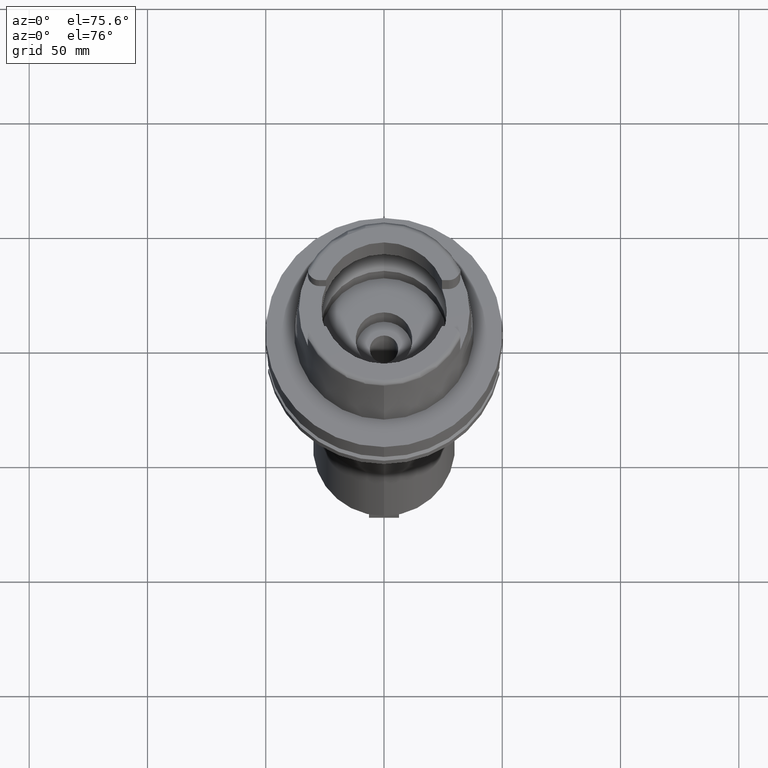
[diagram: clean part render]
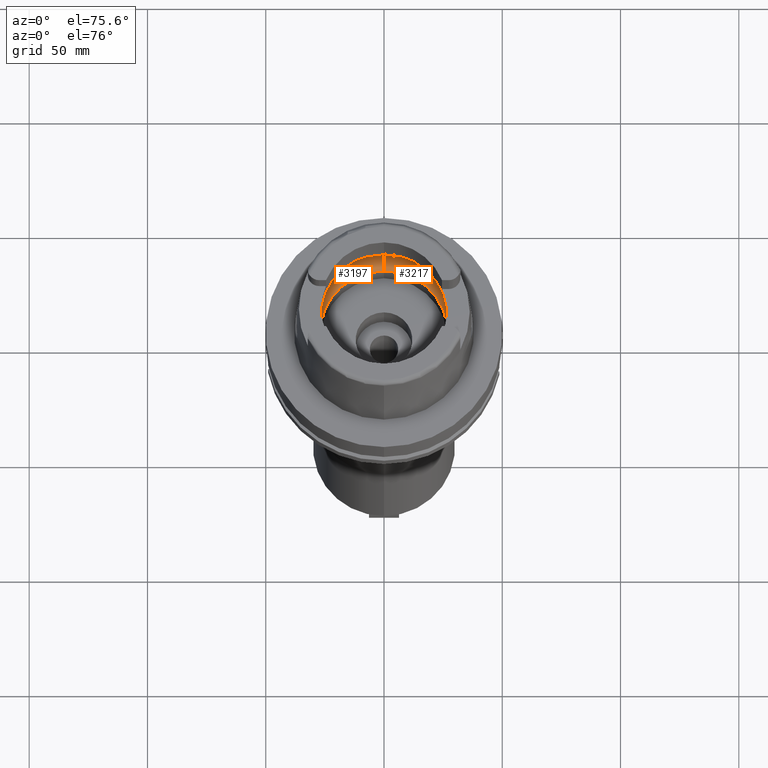
[diagram: same view with one multi-face feature highlighted, each face labeled with its STEP entity id]
A machine part, auxiliary view. The highlighted faces form ONE feature: a constant-radius fillet chain: 2 tangent blend faces with common blend radius 12 mm. The faces share edges in the B-rep.
Their STEP definitions:
[1] entity #3197 (Torus):
#577=CARTESIAN_POINT('',(-3.140918884336E1,-2.390158196044E0,9.496624327026E0));
#620=CARTESIAN_POINT('',(-3.140918884336E1,-2.390158196044E0,9.496624327026E0));
#621=CARTESIAN_POINT('',(-3.142817875159E1,-2.140610858661E0,9.388244007530E0));
#622=CARTESIAN_POINT('',(-3.145843758248E1,-1.626014991287E0,9.205154770459E0));
#623=CARTESIAN_POINT('',(-3.148416948118E1,-8.214796750536E-1,
9.037587869685E0));
#624=CARTESIAN_POINT('',(-3.148971910754E1,-2.740178461562E-1,9.E0));
#625=CARTESIAN_POINT('',(-3.148971910754E1,0.E0,9.E0));
#630=CARTESIAN_POINT('',(-3.148971910754E1,0.E0,9.E0));
#631=CARTESIAN_POINT('',(-3.148971910754E1,2.740194019664E-1,9.E0));
#632=CARTESIAN_POINT('',(-3.148416939818E1,8.214832298144E-1,9.037588419707E0));
#633=CARTESIAN_POINT('',(-3.145843756616E1,1.626014836423E0,9.205154859198E0));
#634=CARTESIAN_POINT('',(-3.142817875670E1,2.140610791588E0,9.388243978399E0));
#635=CARTESIAN_POINT('',(-3.140918884336E1,2.390158196044E0,9.496624327026E0));
#640=CARTESIAN_POINT('',(0.E0,0.E0,9.496624327026E0));
#641=DIRECTION('',(0.E0,0.E0,-1.E0));
#642=DIRECTION('',(-9.971171061384E-1,7.587803796965E-2,0.E0));
#643=AXIS2_PLACEMENT_3D('',#640,#641,#642);
#648=CARTESIAN_POINT('',(0.E0,0.E0,4.993178413033E-2));
#649=DIRECTION('',(0.E0,0.E0,1.E0));
#650=DIRECTION('',(0.E0,1.E0,0.E0));
#651=AXIS2_PLACEMENT_3D('',#648,#649,#650);
#656=CARTESIAN_POINT('',(0.E0,-1.95E1,9.496624327026E0));
#657=DIRECTION('',(-1.E0,0.E0,0.E0));
#658=DIRECTION('',(0.E0,-6.166666666667E-1,-7.872243785746E-1));
#659=AXIS2_PLACEMENT_3D('',#656,#657,#658);
#664=CARTESIAN_POINT('',(0.E0,0.E0,9.496624327026E0));
#665=DIRECTION('',(0.E0,0.E0,-1.E0));
#666=DIRECTION('',(0.E0,-1.E0,0.E0));
#667=AXIS2_PLACEMENT_3D('',#664,#665,#666);
#698=CARTESIAN_POINT('',(0.E0,1.95E1,9.496624327026E0));
#699=DIRECTION('',(1.E0,0.E0,0.E0));
#700=DIRECTION('',(0.E0,6.166666666667E-1,-7.872243785746E-1));
#701=AXIS2_PLACEMENT_3D('',#698,#699,#700);
#2515=VERTEX_POINT('',#577);
#2516=CARTESIAN_POINT('',(0.E0,-3.15E1,9.496624327026E0));
#2517=VERTEX_POINT('',#2516);
#2518=CARTESIAN_POINT('',(0.E0,3.15E1,9.496624327026E0));
#2519=VERTEX_POINT('',#2518);
#2520=CARTESIAN_POINT('',(-3.140918884336E1,2.390158196044E0,9.496624327026E0));
#2521=VERTEX_POINT('',#2520);
#2522=CARTESIAN_POINT('',(-3.148971910754E1,0.E0,9.E0));
#2523=VERTEX_POINT('',#2522);
#2528=CARTESIAN_POINT('',(0.E0,2.69E1,4.993178413034E-2));
#2529=VERTEX_POINT('',#2528);
#2530=CARTESIAN_POINT('',(0.E0,-2.69E1,4.993178413033E-2));
#2531=VERTEX_POINT('',#2530);
#3180=CARTESIAN_POINT('',(0.E0,0.E0,9.496624327026E0));
#3181=DIRECTION('',(0.E0,0.E0,1.E0));
#3182=DIRECTION('',(0.E0,1.E0,0.E0));
#3183=AXIS2_PLACEMENT_3D('',#3180,#3181,#3182);
#3184=TOROIDAL_SURFACE('',#3183,1.95E1,1.2E1);
#3185=ORIENTED_EDGE('',*,*,#3161,.T.);
#3186=ORIENTED_EDGE('',*,*,#3172,.T.);
#3187=ORIENTED_EDGE('',*,*,#3143,.T.);
#3189=ORIENTED_EDGE('',*,*,#3188,.F.);
#3191=ORIENTED_EDGE('',*,*,#3190,.T.);
#3193=ORIENTED_EDGE('',*,*,#3192,.T.);
#3194=ORIENTED_EDGE('',*,*,#3136,.T.);
#3195=EDGE_LOOP('',(#3185,#3186,#3187,#3189,#3191,#3193,#3194));
#3196=FACE_OUTER_BOUND('',#3195,.F.);
#626=B_SPLINE_CURVE_WITH_KNOTS('',3,(#620,#621,#622,#623,#624,#625),
.UNSPECIFIED.,.F.,.F.,(4,1,1,4),(0.E0,3.333333333333E-1,6.666666666667E-1,1.E0),
.UNSPECIFIED.);
#636=B_SPLINE_CURVE_WITH_KNOTS('',3,(#630,#631,#632,#633,#634,#635),
.UNSPECIFIED.,.F.,.F.,(4,1,1,4),(0.E0,3.333333333333E-1,6.666666666667E-1,1.E0),
.UNSPECIFIED.);
#644=CIRCLE('',#643,3.15E1);
#652=CIRCLE('',#651,2.69E1);
#660=CIRCLE('',#659,1.2E1);
#668=CIRCLE('',#667,3.15E1);
#702=CIRCLE('',#701,1.2E1);
#3136=EDGE_CURVE('',#2517,#2515,#668,.T.);
#3143=EDGE_CURVE('',#2521,#2519,#644,.T.);
#3161=EDGE_CURVE('',#2515,#2523,#626,.T.);
#3172=EDGE_CURVE('',#2523,#2521,#636,.T.);
#3188=EDGE_CURVE('',#2529,#2519,#702,.T.);
#3190=EDGE_CURVE('',#2529,#2531,#652,.T.);
#3192=EDGE_CURVE('',#2531,#2517,#660,.T.);
#3197=ADVANCED_FACE('',(#3196),#3184,.F.);
[2] entity #3217 (Torus):
#656=CARTESIAN_POINT('',(0.E0,-1.95E1,9.496624327026E0));
#657=DIRECTION('',(-1.E0,0.E0,0.E0));
#658=DIRECTION('',(0.E0,-6.166666666667E-1,-7.872243785746E-1));
#659=AXIS2_PLACEMENT_3D('',#656,#657,#658);
#672=CARTESIAN_POINT('',(3.148971910754E1,0.E0,9.E0));
#673=CARTESIAN_POINT('',(3.148971910754E1,-2.740181702335E-1,9.E0));
#674=CARTESIAN_POINT('',(3.148416946835E1,-8.214804300662E-1,9.037587956863E0));
#675=CARTESIAN_POINT('',(3.145843754551E1,-1.626015769835E0,9.205155003511E0));
#676=CARTESIAN_POINT('',(3.142817872740E1,-2.140611176575E0,9.388244145602E0));
#677=CARTESIAN_POINT('',(3.140918884336E1,-2.390158196044E0,9.496624327026E0));
#682=CARTESIAN_POINT('',(0.E0,0.E0,9.496624327026E0));
#683=DIRECTION('',(0.E0,0.E0,-1.E0));
#684=DIRECTION('',(9.971171061384E-1,-7.587803796965E-2,0.E0));
#685=AXIS2_PLACEMENT_3D('',#682,#683,#684);
#690=CARTESIAN_POINT('',(0.E0,0.E0,4.993178413033E-2));
#691=DIRECTION('',(0.E0,0.E0,1.E0));
#692=DIRECTION('',(0.E0,-1.E0,0.E0));
#693=AXIS2_PLACEMENT_3D('',#690,#691,#692);
#698=CARTESIAN_POINT('',(0.E0,1.95E1,9.496624327026E0));
#699=DIRECTION('',(1.E0,0.E0,0.E0));
#700=DIRECTION('',(0.E0,6.166666666667E-1,-7.872243785746E-1));
#701=AXIS2_PLACEMENT_3D('',#698,#699,#700);
#706=CARTESIAN_POINT('',(0.E0,0.E0,9.496624327026E0));
#707=DIRECTION('',(0.E0,0.E0,-1.E0));
#708=DIRECTION('',(0.E0,1.E0,0.E0));
#709=AXIS2_PLACEMENT_3D('',#706,#707,#708);
#714=CARTESIAN_POINT('',(3.140918884336E1,2.390158196044E0,9.496624327026E0));
#715=CARTESIAN_POINT('',(3.142817878144E1,2.140610466451E0,9.388243837189E0));
#716=CARTESIAN_POINT('',(3.145843760387E1,1.626014040222E0,9.205154621385E0));
#717=CARTESIAN_POINT('',(3.148416941098E1,8.214824720230E-1,9.037588332748E0));
#718=CARTESIAN_POINT('',(3.148971910754E1,2.740190768124E-1,9.E0));
#719=CARTESIAN_POINT('',(3.148971910754E1,0.E0,9.E0));
#731=CARTESIAN_POINT('',(3.140918884336E1,-2.390158196044E0,9.496624327026E0));
#760=CARTESIAN_POINT('',(3.140918884336E1,2.390158196044E0,9.496624327026E0));
#2516=CARTESIAN_POINT('',(0.E0,-3.15E1,9.496624327026E0));
#2517=VERTEX_POINT('',#2516);
#2518=CARTESIAN_POINT('',(0.E0,3.15E1,9.496624327026E0));
#2519=VERTEX_POINT('',#2518);
#2524=VERTEX_POINT('',#731);
#2526=VERTEX_POINT('',#672);
#2527=VERTEX_POINT('',#760);
#2528=CARTESIAN_POINT('',(0.E0,2.69E1,4.993178413034E-2));
#2529=VERTEX_POINT('',#2528);
#2530=CARTESIAN_POINT('',(0.E0,-2.69E1,4.993178413033E-2));
#2531=VERTEX_POINT('',#2530);
#3198=CARTESIAN_POINT('',(0.E0,0.E0,9.496624327026E0));
#3199=DIRECTION('',(0.E0,0.E0,1.E0));
#3200=DIRECTION('',(0.E0,1.E0,0.E0));
#3201=AXIS2_PLACEMENT_3D('',#3198,#3199,#3200);
#3202=TOROIDAL_SURFACE('',#3201,1.95E1,1.2E1);
#3204=ORIENTED_EDGE('',*,*,#3203,.T.);
#3206=ORIENTED_EDGE('',*,*,#3205,.T.);
#3207=ORIENTED_EDGE('',*,*,#3192,.F.);
#3209=ORIENTED_EDGE('',*,*,#3208,.T.);
#3210=ORIENTED_EDGE('',*,*,#3188,.T.);
#3212=ORIENTED_EDGE('',*,*,#3211,.T.);
#3214=ORIENTED_EDGE('',*,*,#3213,.T.);
#3215=EDGE_LOOP('',(#3204,#3206,#3207,#3209,#3210,#3212,#3214));
#3216=FACE_OUTER_BOUND('',#3215,.F.);
#660=CIRCLE('',#659,1.2E1);
#678=B_SPLINE_CURVE_WITH_KNOTS('',3,(#672,#673,#674,#675,#676,#677),
.UNSPECIFIED.,.F.,.F.,(4,1,1,4),(0.E0,3.333333333333E-1,6.666666666667E-1,1.E0),
.UNSPECIFIED.);
#686=CIRCLE('',#685,3.15E1);
#694=CIRCLE('',#693,2.69E1);
#702=CIRCLE('',#701,1.2E1);
#710=CIRCLE('',#709,3.15E1);
#720=B_SPLINE_CURVE_WITH_KNOTS('',3,(#714,#715,#716,#717,#718,#719),
.UNSPECIFIED.,.F.,.F.,(4,1,1,4),(0.E0,3.333333333333E-1,6.666666666667E-1,1.E0),
.UNSPECIFIED.);
#3188=EDGE_CURVE('',#2529,#2519,#702,.T.);
#3192=EDGE_CURVE('',#2531,#2517,#660,.T.);
#3203=EDGE_CURVE('',#2526,#2524,#678,.T.);
#3205=EDGE_CURVE('',#2524,#2517,#686,.T.);
#3208=EDGE_CURVE('',#2531,#2529,#694,.T.);
#3211=EDGE_CURVE('',#2519,#2527,#710,.T.);
#3213=EDGE_CURVE('',#2527,#2526,#720,.T.);
#3217=ADVANCED_FACE('',(#3216),#3202,.F.);